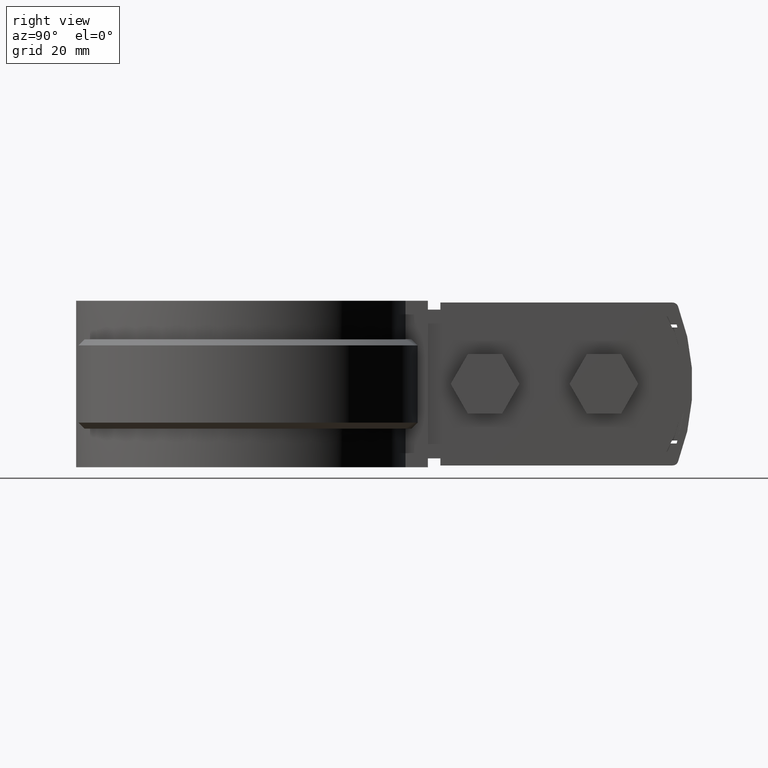
[diagram: clean part render]
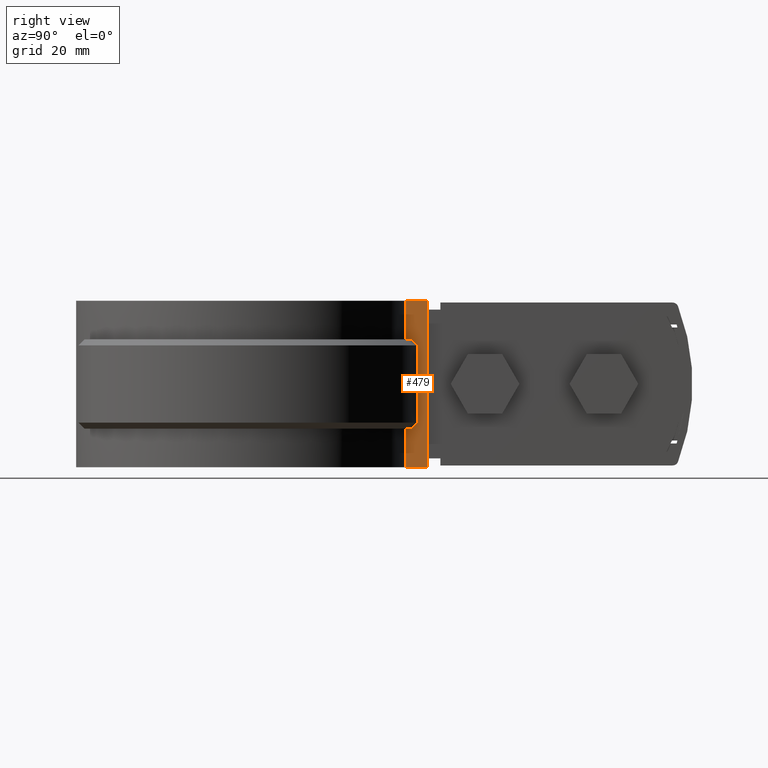
[diagram: same view with one face highlighted and labeled with its STEP entity id]
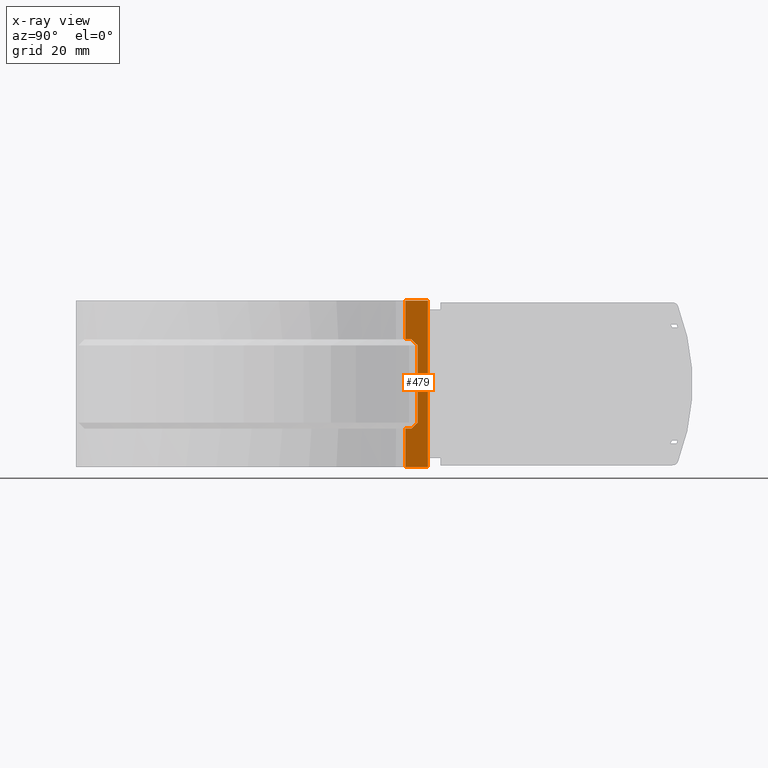
[diagram: x-ray of the same camera — body ghosted, the highlighted face saturated]
A machine part, right view. The second image highlights one B-rep face of the part: STEP entity #479.
The next image is the same camera in x-ray: the body ghosted, the highlighted face saturated — about 0% of this face is hidden behind the body in this view.
In plain terms, the highlighted planar face has unit normal (1, -0, 0).
Its self-contained STEP definition (entity closure, byte-faithful):
#479 = ADVANCED_FACE( '', ( #970 ), #971, .T. );
#970 = FACE_OUTER_BOUND( '', #2288, .T. );
#971 = PLANE( '', #2289 );
#2288 = EDGE_LOOP( '', ( #5445, #5446, #5447, #5448, #5449, #5450, #5451, #5452, #5453, #5454 ) );
#2289 = AXIS2_PLACEMENT_3D( '', #5455, #5456, #5457 );
#5445 = ORIENTED_EDGE( '', *, *, #7766, .F. );
#5446 = ORIENTED_EDGE( '', *, *, #7767, .T. );
#5447 = ORIENTED_EDGE( '', *, *, #7768, .F. );
#5448 = ORIENTED_EDGE( '', *, *, #7698, .F. );
#5449 = ORIENTED_EDGE( '', *, *, #7755, .T. );
#5450 = ORIENTED_EDGE( '', *, *, #7759, .T. );
#5451 = ORIENTED_EDGE( '', *, *, #7746, .F. );
#5452 = ORIENTED_EDGE( '', *, *, #7704, .F. );
#5453 = ORIENTED_EDGE( '', *, *, #7668, .T. );
#5454 = ORIENTED_EDGE( '', *, *, #7740, .T. );
#5455 = CARTESIAN_POINT( '', ( 6.10000000000001, 27.4247885133140, -26.5000000000000 ) );
#5456 = DIRECTION( '', ( 1.00000000000000, -6.07153216591882E-017, 0.000000000000000 ) );
#5457 = DIRECTION( '', ( 0.000000000000000, 0.000000000000000, 1.00000000000000 ) );
#7668 = EDGE_CURVE( '', #8858, #8860, #8862, .F. );
#7698 = EDGE_CURVE( '', #8906, #8908, #8909, .T. );
#7704 = EDGE_CURVE( '', #8858, #8919, #8920, .T. );
#7740 = EDGE_CURVE( '', #8860, #8969, #8970, .F. );
#7746 = EDGE_CURVE( '', #8919, #8979, #8980, .F. );
#7755 = EDGE_CURVE( '', #8906, #8991, #8993, .T. );
#7759 = EDGE_CURVE( '', #8991, #8979, #8997, .T. );
#7766 = EDGE_CURVE( '', #9007, #8969, #9008, .T. );
#7767 = EDGE_CURVE( '', #9007, #9009, #9010, .F. );
#7768 = EDGE_CURVE( '', #8908, #9009, #9011, .T. );
#8858 = VERTEX_POINT( '', #12039 );
#8860 = VERTEX_POINT( '', #12041 );
#8862 = LINE( '', #12043, #12044 );
#8906 = VERTEX_POINT( '', #12154 );
#8908 = VERTEX_POINT( '', #12156 );
#8909 = LINE( '', #12157, #12158 );
#8919 = VERTEX_POINT( '', #12173 );
#8920 = LINE( '', #12174, #12175 );
#8969 = VERTEX_POINT( '', #12358 );
#8970 = B_SPLINE_CURVE_WITH_KNOTS( '', 3, ( #12359, #12360, #12361, #12362 ), .UNSPECIFIED., .F., .F., ( 4, 4 ), ( 707.064662971533, 707.066092797481 ), .UNSPECIFIED. );
#8979 = VERTEX_POINT( '', #12373 );
#8980 = LINE( '', #12374, #12375 );
#8991 = VERTEX_POINT( '', #12389 );
#8993 = LINE( '', #12392, #12393 );
#8997 = LINE( '', #12400, #12401 );
#9007 = VERTEX_POINT( '', #12419 );
#9008 = LINE( '', #12420, #12421 );
#9009 = VERTEX_POINT( '', #12422 );
#9010 = B_SPLINE_CURVE_WITH_KNOTS( '', 3, ( #12423, #12424, #12425, #12426 ), .UNSPECIFIED., .F., .F., ( 4, 4 ), ( 707.140185523542, 707.141617626904 ), .UNSPECIFIED. );
#9011 = LINE( '', #12427, #12428 );
#12039 = CARTESIAN_POINT( '', ( 6.10000000000001, 27.4247885133140, -5.00000000000000 ) );
#12041 = CARTESIAN_POINT( '', ( 6.10000000000001, 28.4483571581911, -5.00000000000000 ) );
#12043 = CARTESIAN_POINT( '', ( 6.10000000000001, 27.4247885133140, -5.00000000000000 ) );
#12044 = VECTOR( '', #14151, 1000.00000000000 );
#12154 = CARTESIAN_POINT( '', ( 6.10000000000001, 27.4247885133140, -26.5000000000000 ) );
#12156 = CARTESIAN_POINT( '', ( 6.10000000000001, 27.4247885133140, -20.0000000000000 ) );
#12157 = CARTESIAN_POINT( '', ( 6.10000000000001, 27.4247885133140, -26.5000000000000 ) );
#12158 = VECTOR( '', #14182, 1000.00000000000 );
#12173 = CARTESIAN_POINT( '', ( 6.10000000000001, 27.4247885133140, 1.50000000000000 ) );
#12174 = CARTESIAN_POINT( '', ( 6.10000000000001, 27.4247885133140, -26.5000000000000 ) );
#12175 = VECTOR( '', #14193, 1000.00000000000 );
#12358 = CARTESIAN_POINT( '', ( 6.10000000000001, 29.4703075145136, -5.99999999999999 ) );
#12359 = CARTESIAN_POINT( '', ( 6.10000000000001, 29.4703075145244, -6.00000000001056 ) );
#12360 = CARTESIAN_POINT( '', ( 6.10000000000001, 29.1297801164765, -5.66654104876981 ) );
#12361 = CARTESIAN_POINT( '', ( 6.10000000000001, 28.7891343087319, -5.33320330262716 ) );
#12362 = CARTESIAN_POINT( '', ( 6.10000000000001, 28.4483571581937, -5.00000000000259 ) );
#12373 = CARTESIAN_POINT( '', ( 6.10000000000001, 31.1900000000000, 1.50000000000000 ) );
#12374 = CARTESIAN_POINT( '', ( 6.10000000000001, 26.7207784317748, 1.50000000000000 ) );
#12375 = VECTOR( '', #14244, 1000.00000000000 );
#12389 = CARTESIAN_POINT( '', ( 6.10000000000001, 31.1900000000000, -26.5000000000000 ) );
#12392 = CARTESIAN_POINT( '', ( 6.10000000000001, 27.4247885133140, -26.5000000000000 ) );
#12393 = VECTOR( '', #14261, 1000.00000000000 );
#12400 = CARTESIAN_POINT( '', ( 6.10000000000001, 31.1900000000000, -26.5000000000000 ) );
#12401 = VECTOR( '', #14265, 1000.00000000000 );
#12419 = CARTESIAN_POINT( '', ( 6.10000000000001, 29.4703075145136, -19.0000000000000 ) );
#12420 = CARTESIAN_POINT( '', ( 6.10000000000001, 29.4703075145136, -20.0000000000000 ) );
#12421 = VECTOR( '', #14271, 1000.00000000000 );
#12422 = CARTESIAN_POINT( '', ( 6.10000000000001, 28.4483571581910, -20.0000000000000 ) );
#12423 = CARTESIAN_POINT( '', ( 6.10000000000001, 28.4483571581630, -20.0000000000274 ) );
#12424 = CARTESIAN_POINT( '', ( 6.10000000000001, 28.7891348895040, -19.6667961295086 ) );
#12425 = CARTESIAN_POINT( '', ( 6.10000000000001, 29.1297806771433, -19.3334584022013 ) );
#12426 = CARTESIAN_POINT( '', ( 6.10000000000001, 29.4703075145470, -18.9999999999673 ) );
#12427 = CARTESIAN_POINT( '', ( 6.10000000000001, -3.70363462121049E-016, -20.0000000000000 ) );
#12428 = VECTOR( '', #14272, 1000.00000000000 );
#14151 = DIRECTION( '', ( -6.07153216591882E-017, -1.00000000000000, 0.000000000000000 ) );
#14182 = DIRECTION( '', ( 0.000000000000000, 0.000000000000000, 1.00000000000000 ) );
#14193 = DIRECTION( '', ( 0.000000000000000, 0.000000000000000, 1.00000000000000 ) );
#14244 = DIRECTION( '', ( -6.07153216591882E-017, -1.00000000000000, 0.000000000000000 ) );
#14261 = DIRECTION( '', ( 6.07153216591882E-017, 1.00000000000000, 0.000000000000000 ) );
#14265 = DIRECTION( '', ( 0.000000000000000, 0.000000000000000, 1.00000000000000 ) );
#14271 = DIRECTION( '', ( 0.000000000000000, 0.000000000000000, 1.00000000000000 ) );
#14272 = DIRECTION( '', ( 6.07153216591882E-017, 1.00000000000000, 0.000000000000000 ) );